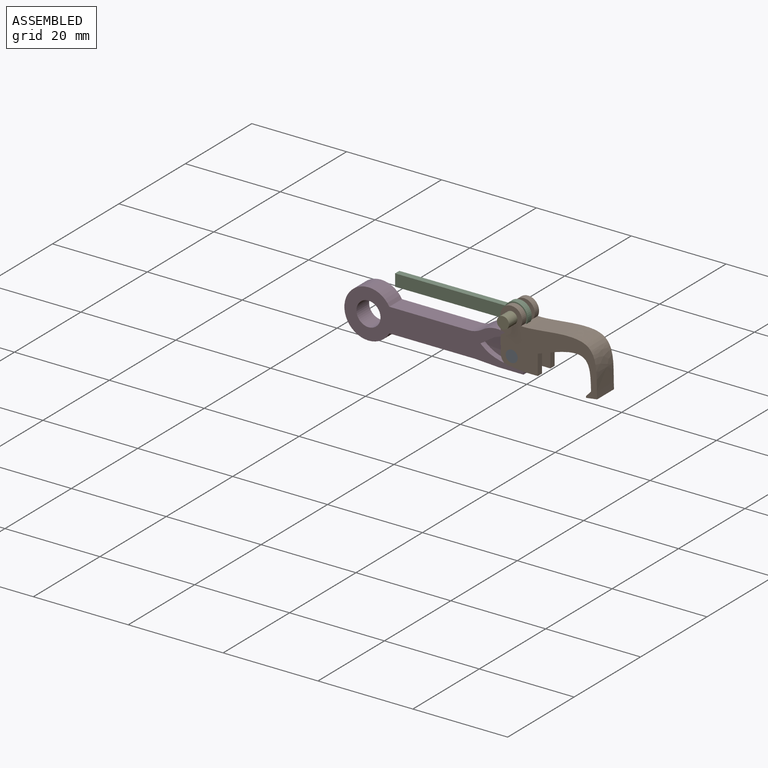
[diagram: assembled view]
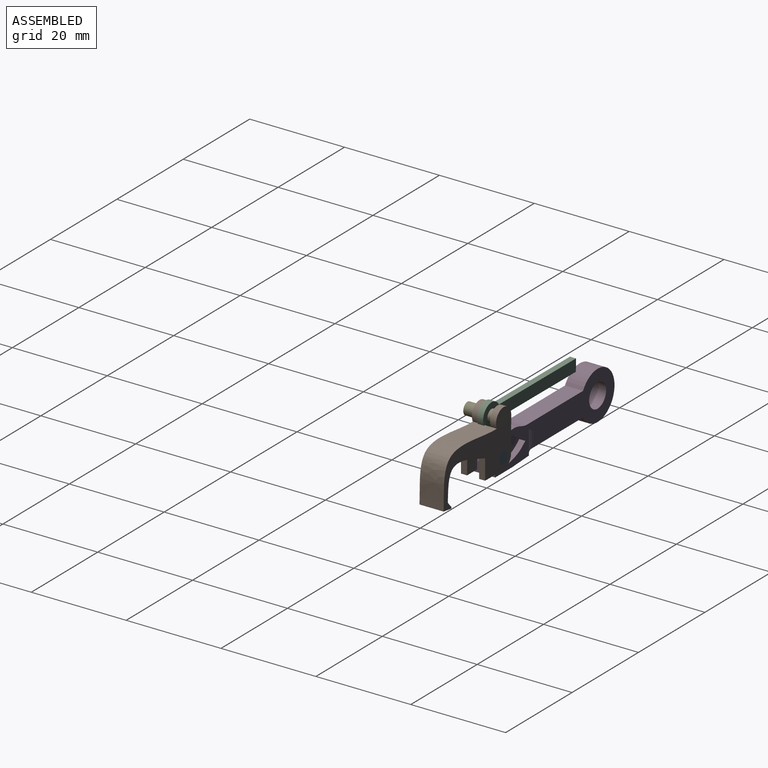
[diagram: assembled view, second angle]
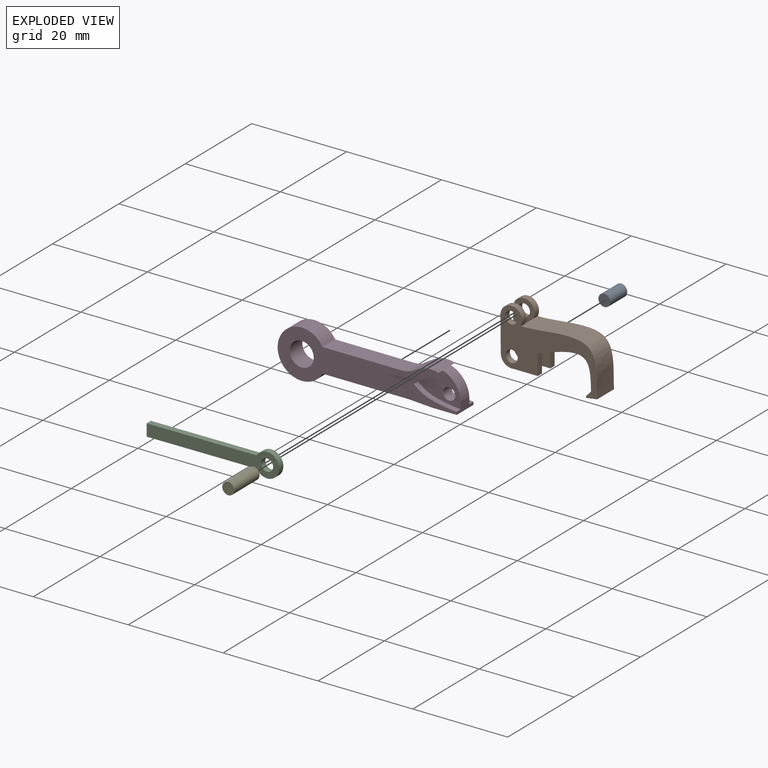
[diagram: exploded view]
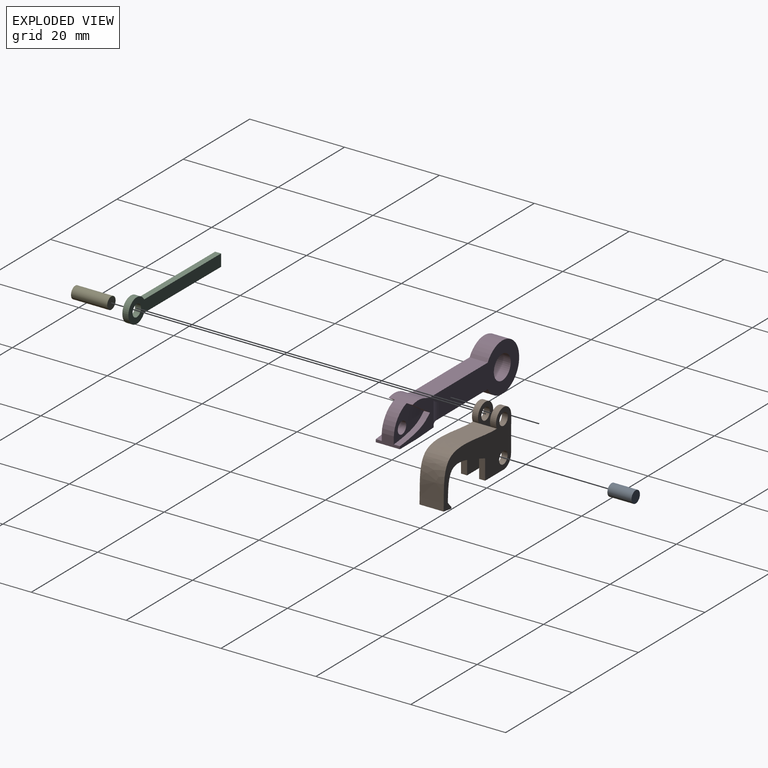
[diagram: exploded view, second angle]
ASSEMBLY  parts=5 mates=4
PART A: 3 faces, bbox 2.5x5.1x2.5 mm
  f0: cylinder r=1.27mm len=5.08mm, axis (0,1,0), area 40.5mm2, adj f1,f2
  f1: plane 2.54x2.54mm, normal (0,-1,0), area 5.1mm2, adj f0
  f2: plane 2.54x2.54mm, normal (0,1,0), area 5.1mm2, adj f0
PART B: 27 faces, bbox 21.8x5.9x14.2 mm
  f0: cylinder r=2.29mm len=4.57mm, axis (0,1,0), area 10.5mm2, adj f4,f15,f20,f26
  f1: plane 4.26x1.27mm, normal (1,0,0), area 5.4mm2, adj f2,f11,f20,f26
  f2: plane 5.15x1.27mm, normal (0,0,-1), area 6.5mm2, adj f1,f3,f20,f26
  f3: cylinder r=2.32mm len=2.65mm, axis (0,1,0), area 5mm2, adj f2,f4,f20,f26
  f4: plane 7.33x1.27mm, normal (-1,0,-0.01), area 9.3mm2, adj f0,f3,f20,f26
  f5: cylinder r=1.27mm len=2.54mm, axis (0,1,0), area 10.1mm2, adj f20,f26
  f6: cylinder r=1.27mm len=2.54mm, axis (0,1,0), area 10.1mm2, adj f20,f26
  f7: plane 7.33x1.27mm, normal (-1,0,-0.01), area 9.3mm2, adj f8,f18,f19,f25
  f8: cylinder r=2.32mm len=2.65mm, axis (0,1,0), area 5mm2, adj f7,f9,f19,f25
  f9: plane 5.15x1.27mm, normal (0,0,-1), area 6.5mm2, adj f8,f10,f19,f25
  f10: plane 4.26x1.27mm, normal (1,0,0), area 5.4mm2, adj f9,f11,f19,f25
  f11: extruded ~11.23x6.38mm, area 83.8mm2, adj f1,f10,f12,f19,f20,f22
  f12: plane 5.08x1.16mm, normal (-0.74,0,0.67), area 7.9mm2, adj f11,f13,f19,f20
  f13: plane 5.08x0.33mm, normal (-1,0,0), area 1.7mm2, adj f12,f14,f19,f20
  f14: plane 5.08x2.34mm, normal (0.14,0,-0.99), area 12mm2, adj f13,f15,f19,f20
  f15: extruded ~16.06x10.4mm, area 123.4mm2, adj f0,f14,f18,f19,f20,f21
  f16: cylinder r=1.27mm len=2.54mm, axis (0,1,0), area 10.1mm2, adj f19,f25
  f17: cylinder r=1.27mm len=2.54mm, axis (0,1,0), area 10.1mm2, adj f19,f25
  f18: cylinder r=2.29mm len=4.57mm, axis (0,1,0), area 10.5mm2, adj f7,f15,f19,f25
  f19: plane 20.93x13.34mm, normal (0,-1,0), area 117.6mm2, adj f7,f8,f9,f10,f11,f12,f13,f14
  f20: plane 20.93x13.34mm, normal (0,1,0), area 117.7mm2, adj f0,f1,f2,f3,f4,f5,f6,f11
  f21: cylinder r=2.29mm len=2.54mm, axis (0,1,0), area 5.4mm2, adj f15,f24,f25,f26
  f22: plane 2.54x1.35mm, normal (-1,0,0), area 3.4mm2, adj f11,f23,f25,f26
  f23: extruded ~9.67x2.54mm, area 25.4mm2, adj f22,f24,f25,f26
  f24: extruded ~14.87x2.54mm, area 38.1mm2, adj f21,f23,f25,f26
  f25: plane 18.37x12.77mm, normal (0,1,0), area 71.6mm2, adj f7,f8,f9,f10,f16,f17,f18,f21
  f26: plane 18.37x12.77mm, normal (0,-1,0), area 71.6mm2, adj f0,f1,f2,f3,f4,f5,f6,f21
PART C: 7 faces, bbox 27.9x1.3x5.1 mm
  f0: plane 23.2x1.27mm, normal (0,0,1), area 29.5mm2, adj f1,f4,f5,f6
  f1: plane 2.54x1.27mm, normal (-1,0,0), area 3.2mm2, adj f0,f2,f5,f6
  f2: plane 23.2x1.27mm, normal (0,0,-1), area 29.5mm2, adj f1,f4,f5,f6
  f3: cylinder r=1.27mm len=2.54mm, axis (0,1,0), area 10.1mm2, adj f5,f6
  f4: cylinder r=2.54mm len=5.08mm, axis (0,1,0), area 16.9mm2, adj f0,f2,f5,f6
  f5: plane 27.94x5.08mm, normal (0,-1,0), area 73.5mm2, adj f0,f1,f2,f3,f4
  f6: plane 27.94x5.08mm, normal (0,1,0), area 73.5mm2, adj f0,f1,f2,f3,f4
PART D: 22 faces, bbox 37.8x5.1x10.2 mm
  f0: plane 5.23x3.46mm, normal (0.55,0,-0.83), area 8mm2, adj f1,f14,f15,f18
  f1: extruded ~9.08x2.94mm, area 12.4mm2, adj f0,f11,f15,f18
  f2: cylinder r=5.08mm len=10.16mm, axis (0,1,0), area 101.3mm2, adj f3,f5,f6,f7
  f3: plane 17.96x3.81mm, normal (0,0,-1), area 68.4mm2, adj f2,f6,f7,f19
  f4: cylinder r=2.54mm len=5.08mm, axis (0,1,0), area 60.8mm2, adj f6,f7
  f5: plane 16.7x3.81mm, normal (0,0,1), area 63.6mm2, adj f2,f6,f7,f20
  f6: plane 37.75x10.16mm, normal (0,-1,0), area 178.3mm2, adj f2,f3,f4,f5,f8,f9,f10,f11
  f7: plane 28.8x10.16mm, normal (0,1,0), area 137.3mm2, adj f2,f3,f4,f5,f8,f9,f19,f20
  f8: plane 5.5x5.08mm, normal (-0.51,0,0.86), area 8.9mm2, adj f6,f7,f14,f15,f20,f21
  f9: plane 8.33x5.09mm, normal (-0.06,0,-1), area 26mm2, adj f6,f7,f10,f15,f19,f21
  f10: plane 5.2x5.08mm, normal (0,0,-1), area 26.4mm2, adj f6,f9,f11,f15
  f11: plane 5.08x2.12mm, normal (1,0,0), area 6.8mm2, adj f1,f6,f10,f12,f14,f15,f17,f18
  f12: extruded ~9.08x2.94mm, area 12.4mm2, adj f6,f11,f13,f17
  f13: plane 5.23x3.46mm, normal (0.55,0,-0.83), area 8mm2, adj f6,f12,f14,f17
  f14: cylinder r=5.57mm len=8.02mm, axis (0,1,0), area 38.4mm2, adj f0,f6,f8,f11,f13,f15,f17,f18
  f15: plane 10.16x7.24mm, normal (0,1,0), area 27.7mm2, adj f0,f1,f8,f9,f10,f11,f14,f21
  f16: cylinder r=1.27mm len=2.54mm, axis (0,1,0), area 20.3mm2, adj f17,f18
  f17: plane 9.08x6.4mm, normal (0,-1,0), area 30.4mm2, adj f11,f12,f13,f14,f16
  f18: plane 9.08x6.4mm, normal (0,1,0), area 30.4mm2, adj f0,f1,f11,f14,f16
  f19: cylinder r=5.08mm len=3.81mm, axis (0,1,0), area 1.1mm2, adj f3,f6,f7,f9
  f20: cylinder r=5.08mm len=3.81mm, axis (0,-1,0), area 10.5mm2, adj f5,f6,f7,f8
  f21: cylinder r=5.08mm len=5.08mm, axis (0,0,-1), area 14.8mm2, adj f7,f8,f9,f15
PART E: 3 faces, bbox 2.5x7.6x2.5 mm
  f0: cylinder r=1.27mm len=7.62mm, axis (0,1,0), area 60.8mm2, adj f1,f2
  f1: plane 2.54x2.54mm, normal (0,-1,0), area 5.1mm2, adj f0
  f2: plane 2.54x2.54mm, normal (0,1,0), area 5.1mm2, adj f0
PLACE A t=(18.61,2.54,0)mm
PLACE B rot(axis=(0,-1,0.01),0deg) t=(13.92,0,-2.24)mm
PLACE C rot(axis=(0,-1,0),0.2deg) t=(-6.88,-0.63,8.5)mm
PLACE D at identity fixed
PLACE E rot(axis=(0,-1,0.01),0deg) t=(18.53,-1.27,7.33)mm
MATE revolute C.f3 <-> B.f0  axis (0,-1,0) through (18.53,-1.27,7.33)mm
MATE fastened E.f0 <-> B.f0  axis (0,1,0) through (18.53,2.54,7.33)mm
MATE fastened D.f16 <-> A.f0  axis (0,1,0) through (18.61,1.27,0)mm
MATE revolute A.f0 <-> B.f3  axis (0,-1,0) through (18.61,-2.54,0)mm
